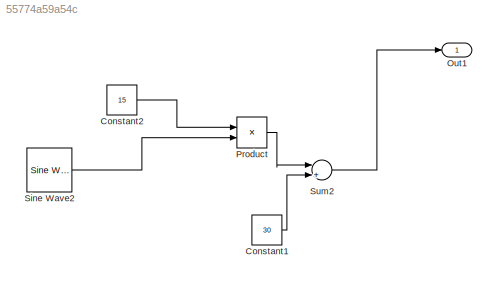
MODEL slx_55774a59a54c
KIND model
CONFIG AbsTol = auto
CONFIG EnableMultiTasking = off
CONFIG FixedStep = auto
CONFIG MaxStep = auto
CONFIG MinStep = auto
CONFIG RelTol = 1e-3
CONFIG SampleTimeConstraint = Unconstrained
CONFIG Solver = VariableStepAuto
CONFIG SolverName = VariableStepAuto
CONFIG StartTime = 0.0
CONFIG StopTime = 10.0
BLOCK [Constant] Constant1
  OutDataTypeStr = fixdt(1,8)
  Value = 30
BLOCK [Constant] Constant2
  OutDataTypeStr = fixdt(1,8)
  Value = 15
BLOCK [Outport] Out1
  IconDisplay = Port number
  OutDataTypeStr = int16
  PortDimensions = [1 1]
  SampleTime = [2.2675736961451248e-05,0]
  SignalType = real
BLOCK [Product] Product
  InputSameDT = off
  OutDataTypeStr = fixdt(1,16)
  OutMax = [15]
  OutMin = [-15]
  Ports = [2, 1]
  RndMeth = Floor
BLOCK [Reference] Sine Wave2  REF=dspsrcs4/Sine Wave
  Ports = [0, 1]
  SourceBlock = dspsrcs4/Sine Wave
  SourceProductBaseCode = DS
  SourceProductName = DSP System Toolbox
  SourceType = Sine Wave
BLOCK [Sum] Sum2
  AccumDataTypeStr = fixdt(1,16,0)
  InputSameDT = off
  Inputs = |++
  OutDataTypeStr = Inherit: Inherit via internal rule
  Ports = [2, 1]
  RndMeth = Ceiling
LINE Constant1:1 -> Sum2:2
LINE Constant2:1 -> Product:1
LINE Product:1 -> Sum2:1
LINE Sine Wave2:1 -> Product:2
LINE Sum2:1 -> Out1:1
